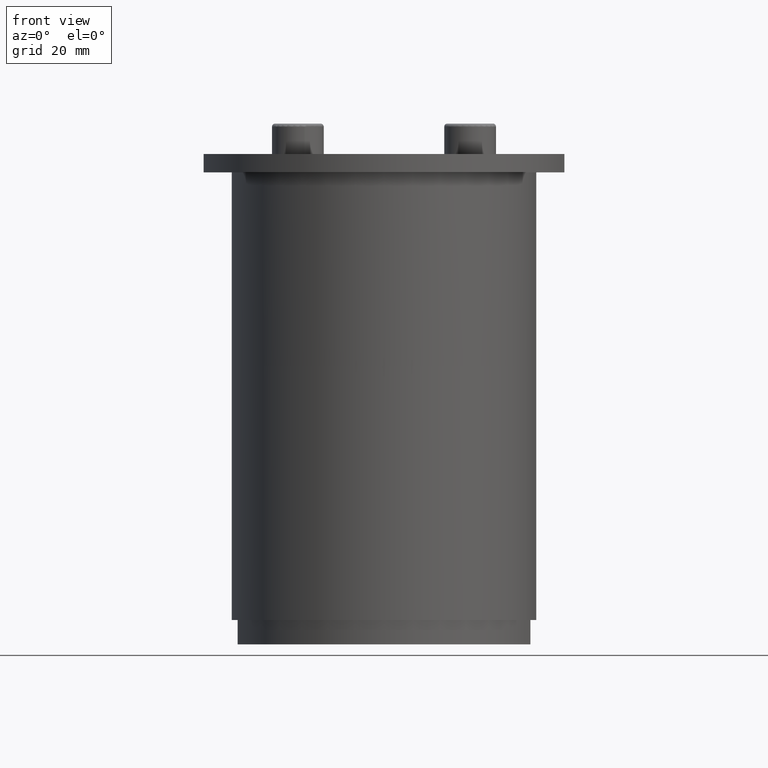
[diagram: clean part render]
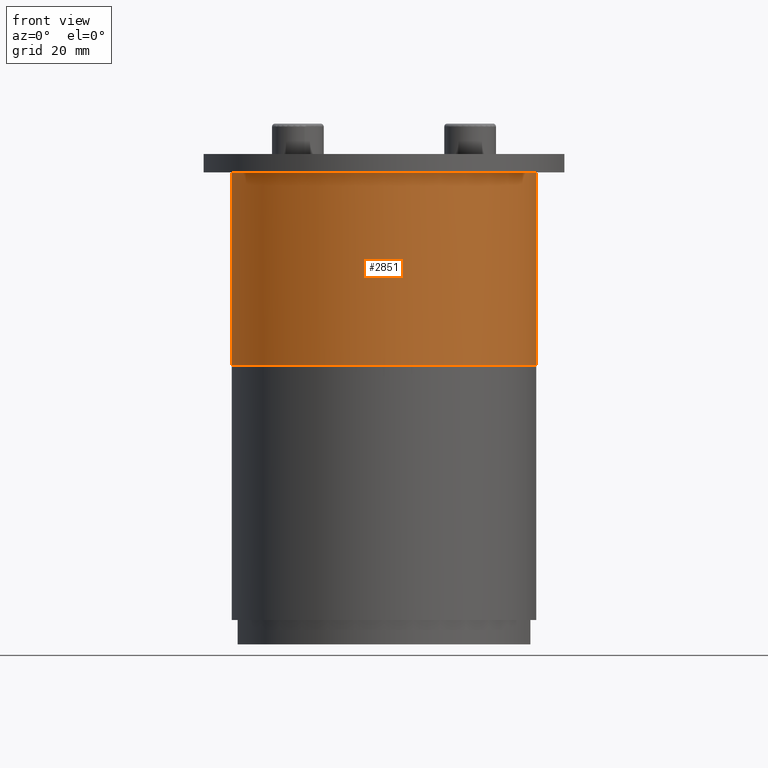
[diagram: same view with one face highlighted and labeled with its STEP entity id]
A machine part, front view. The second image highlights one B-rep face of the part: STEP entity #2851.
In plain terms, the highlighted cylindrical surface (partial cylindrical patch) has radius 25 mm, axis along (0, 0, 1).
Its self-contained STEP definition (entity closure, byte-faithful):
#144=LINE('',#4614,#334);
#145=LINE('',#4615,#335);
#334=VECTOR('',#3667,10.);
#335=VECTOR('',#3668,10.);
#457=CYLINDRICAL_SURFACE('',#3104,25.);
#544=FACE_OUTER_BOUND('',#716,.T.);
#716=EDGE_LOOP('',(#1964,#1965,#1966,#1967,#1968,#1969));
#847=CIRCLE('',#2999,25.);
#879=CIRCLE('',#3057,25.);
#901=CIRCLE('',#3102,25.);
#902=CIRCLE('',#3103,25.);
#1042=VERTEX_POINT('',#4292);
#1043=VERTEX_POINT('',#4294);
#1100=VERTEX_POINT('',#4483);
#1102=VERTEX_POINT('',#4489);
#1138=VERTEX_POINT('',#4607);
#1139=VERTEX_POINT('',#4610);
#1296=EDGE_CURVE('',#1043,#1042,#847,.T.);
#1378=EDGE_CURVE('',#1100,#1102,#879,.T.);
#1437=EDGE_CURVE('',#1102,#1138,#901,.T.);
#1440=EDGE_CURVE('',#1139,#1100,#902,.T.);
#1441=EDGE_CURVE('',#1138,#1042,#144,.T.);
#1442=EDGE_CURVE('',#1043,#1139,#145,.T.);
#1964=ORIENTED_EDGE('',*,*,#1296,.T.);
#1965=ORIENTED_EDGE('',*,*,#1441,.F.);
#1966=ORIENTED_EDGE('',*,*,#1437,.F.);
#1967=ORIENTED_EDGE('',*,*,#1378,.F.);
#1968=ORIENTED_EDGE('',*,*,#1440,.F.);
#1969=ORIENTED_EDGE('',*,*,#1442,.F.);
#2851=ADVANCED_FACE('',(#544),#457,.T.);
#2999=AXIS2_PLACEMENT_3D('',#4295,#3380,#3381);
#3057=AXIS2_PLACEMENT_3D('',#4490,#3532,#3533);
#3102=AXIS2_PLACEMENT_3D('',#4608,#3659,#3660);
#3103=AXIS2_PLACEMENT_3D('',#4612,#3663,#3664);
#3104=AXIS2_PLACEMENT_3D('',#4613,#3665,#3666);
#3380=DIRECTION('center_axis',(3.5527136788005E-16,-4.35081943503005E-32,
1.));
#3381=DIRECTION('ref_axis',(-0.999799979995999,0.0200000000000001,0.));
#3532=DIRECTION('center_axis',(0.,0.,1.));
#3533=DIRECTION('ref_axis',(-0.999799979995999,0.0200000000000001,0.));
#3659=DIRECTION('center_axis',(0.,0.,1.));
#3660=DIRECTION('ref_axis',(-0.999799979995999,0.0200000000000001,0.));
#3663=DIRECTION('center_axis',(0.,0.,1.));
#3664=DIRECTION('ref_axis',(-0.999799979995999,0.0200000000000001,0.));
#3665=DIRECTION('center_axis',(0.,0.,1.));
#3666=DIRECTION('ref_axis',(-2.77555756156289E-16,-1.,0.));
#3667=DIRECTION('',(0.,0.,-1.));
#3668=DIRECTION('',(0.,0.,1.));
#4292=CARTESIAN_POINT('',(25.,0.,-31.75));
#4294=CARTESIAN_POINT('',(-25.,0.,-31.75));
#4295=CARTESIAN_POINT('Origin',(6.93889390390723E-17,-8.49769420904307E-33,
-31.75));
#4483=CARTESIAN_POINT('',(-24.9549594269356,-1.5,0.));
#4489=CARTESIAN_POINT('',(24.9549594269356,-1.50000000000001,8.88178419700125E-15));
#4490=CARTESIAN_POINT('Origin',(6.93889390390723E-17,-8.49769420904307E-33,
0.));
#4607=CARTESIAN_POINT('',(25.,0.,0.));
#4608=CARTESIAN_POINT('Origin',(6.93889390390723E-17,-8.49769420904307E-33,
0.));
#4610=CARTESIAN_POINT('',(-25.,0.,0.));
#4612=CARTESIAN_POINT('Origin',(6.93889390390723E-17,-8.49769420904307E-33,
0.));
#4613=CARTESIAN_POINT('Origin',(6.93889390390723E-17,-8.49769420904307E-33,
-36.75));
#4614=CARTESIAN_POINT('',(25.,0.,-36.75));
#4615=CARTESIAN_POINT('',(-25.,0.,-36.75));